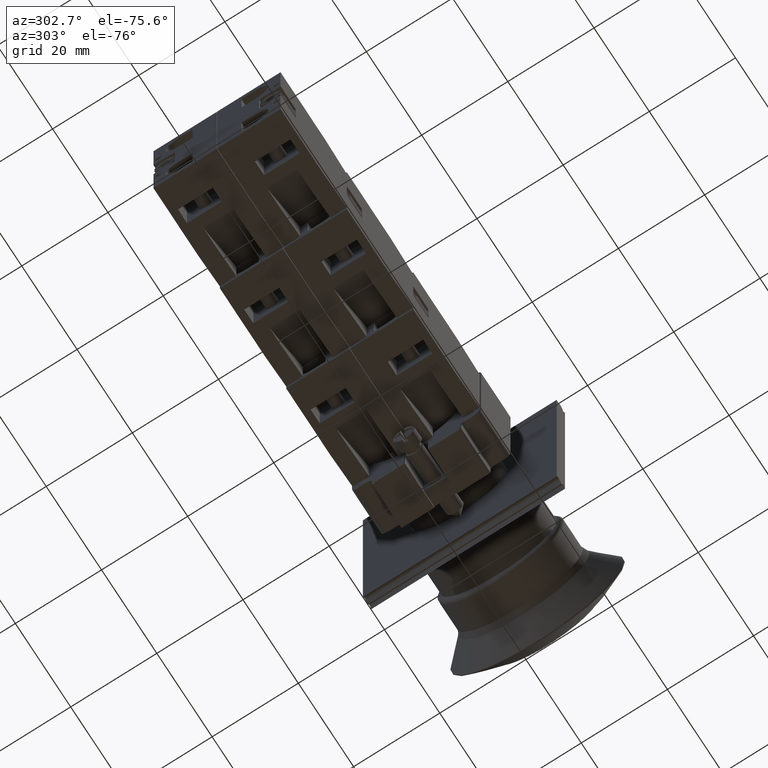
[diagram: clean part render]
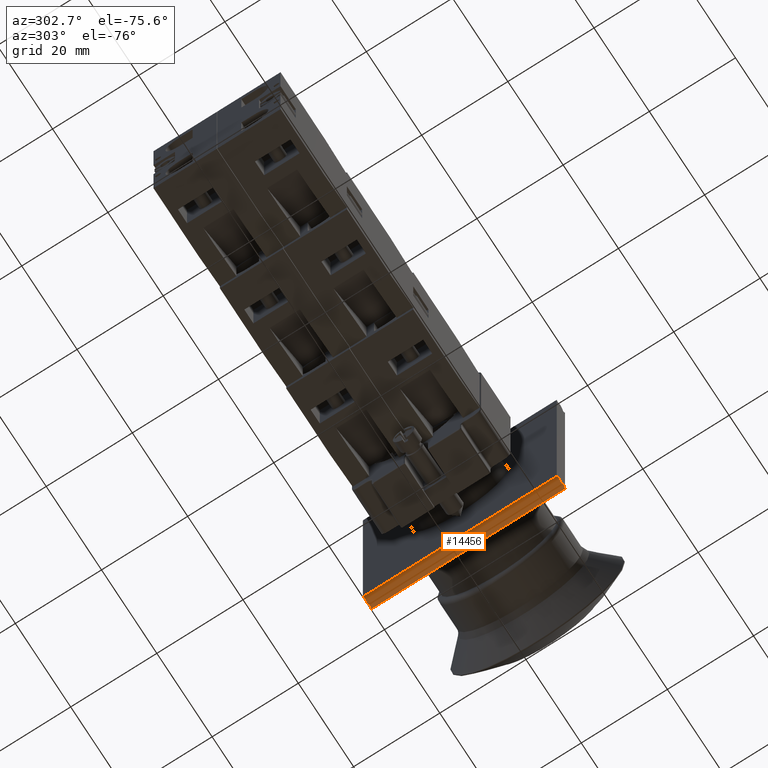
[diagram: same view with one face highlighted and labeled with its STEP entity id]
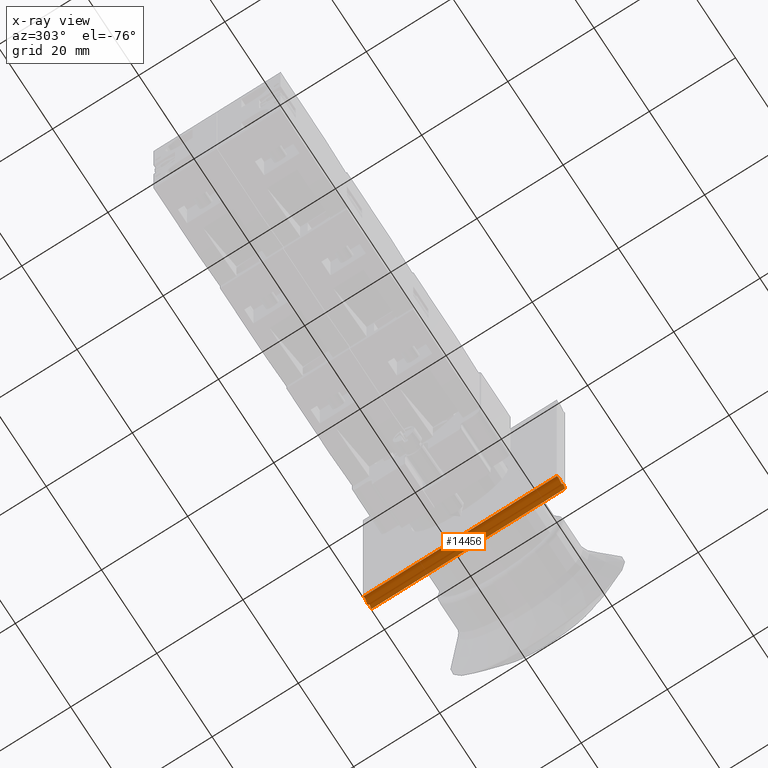
[diagram: x-ray of the same camera — body ghosted, the highlighted face saturated]
A machine part, auxiliary view. The second image highlights one B-rep face of the part: STEP entity #14456.
The next image is the same camera in x-ray: the body ghosted, the highlighted face saturated — about 0% of this face is hidden behind the body in this view.
In plain terms, the highlighted face is a freeform B-spline surface patch.
Its self-contained STEP definition (entity closure, byte-faithful):
#14387=CARTESIAN_POINT('',(-12.704183619849172,-62.725398273954283,45.0));
#14388=VERTEX_POINT('',#14387);
#14395=CARTESIAN_POINT('',(-12.704183619849172,-62.725398273954283,0.0));
#14396=VERTEX_POINT('',#14395);
#14397=CARTESIAN_POINT('',(-12.704183619849172,-62.725398273954283,0.0));
#14398=DIRECTION('',(0.0,0.0,1.0));
#14399=VECTOR('',#14398,45.0);
#14400=LINE('',#14397,#14399);
#14401=EDGE_CURVE('',#14396,#14388,#14400,.T.);
#14416=CARTESIAN_POINT('',(-15.704183619849182,-62.725398273954283,0.0));
#14417=CARTESIAN_POINT('',(-14.283734517597093,-58.710287807173117,0.0));
#14418=CARTESIAN_POINT('',(-13.047229203726467,-69.825373706267470,0.0));
#14419=CARTESIAN_POINT('',(-14.371498841514271,-57.028426828334801,0.0));
#14420=CARTESIAN_POINT('',(-12.704183619849177,-62.725398273954298,0.0));
#14421=CARTESIAN_POINT('',(-15.704183619849182,-62.725398273954283,45.0));
#14422=CARTESIAN_POINT('',(-14.283734517597093,-58.710287807173117,45.0));
#14423=CARTESIAN_POINT('',(-13.047229203726467,-69.825373706267470,45.0));
#14424=CARTESIAN_POINT('',(-14.371498841514271,-57.028426828334801,45.0));
#14425=CARTESIAN_POINT('',(-12.704183619849177,-62.725398273954298,45.0));
#14426=B_SPLINE_SURFACE_WITH_KNOTS('',4,1,((#14416,#14421),(#14417,#14422),(#14418,#14423),(#14419,#14424),(#14420,#14425)),.UNSPECIFIED.,.F.,.F.,.U.,(5,5),(2,2),(0.0,1.0),(0.0,4.500000000000000),.UNSPECIFIED.);
#14427=CARTESIAN_POINT('',(-15.704183619849179,-62.725398273954283,45.0));
#14428=VERTEX_POINT('',#14427);
#14429=CARTESIAN_POINT('',(-12.704183619849177,-62.725398273954298,45.0));
#14430=CARTESIAN_POINT('',(-14.371498841514271,-57.028426828334801,45.0));
#14431=CARTESIAN_POINT('',(-13.047229203726467,-69.825373706267470,45.0));
#14432=CARTESIAN_POINT('',(-14.283734517597093,-58.710287807173117,45.0));
#14433=CARTESIAN_POINT('',(-15.704183619849182,-62.725398273954283,45.0));
#14434=QUASI_UNIFORM_CURVE('',4,(#14429,#14430,#14431,#14432,#14433),.UNSPECIFIED.,.F.,.U.);
#14435=EDGE_CURVE('',#14388,#14428,#14434,.T.);
#14436=ORIENTED_EDGE('',*,*,#14435,.T.);
#14437=CARTESIAN_POINT('',(-15.704183619849179,-62.725398273954283,0.0));
#14438=VERTEX_POINT('',#14437);
#14439=CARTESIAN_POINT('',(-15.704183619849179,-62.725398273954283,0.0));
#14440=DIRECTION('',(0.0,0.0,1.0));
#14441=VECTOR('',#14440,45.0);
#14442=LINE('',#14439,#14441);
#14443=EDGE_CURVE('',#14438,#14428,#14442,.T.);
#14444=ORIENTED_EDGE('',*,*,#14443,.F.);
#14445=CARTESIAN_POINT('',(-15.704183619849182,-62.725398273954283,0.0));
#14446=CARTESIAN_POINT('',(-14.283734517597093,-58.710287807173117,0.0));
#14447=CARTESIAN_POINT('',(-13.047229203726467,-69.825373706267470,0.0));
#14448=CARTESIAN_POINT('',(-14.371498841514271,-57.028426828334801,0.0));
#14449=CARTESIAN_POINT('',(-12.704183619849177,-62.725398273954298,0.0));
#14450=QUASI_UNIFORM_CURVE('',4,(#14445,#14446,#14447,#14448,#14449),.UNSPECIFIED.,.F.,.U.);
#14451=EDGE_CURVE('',#14438,#14396,#14450,.T.);
#14452=ORIENTED_EDGE('',*,*,#14451,.T.);
#14453=ORIENTED_EDGE('',*,*,#14401,.T.);
#14454=EDGE_LOOP('',(#14436,#14444,#14452,#14453));
#14455=FACE_OUTER_BOUND('',#14454,.T.);
#14456=ADVANCED_FACE('',(#14455),#14426,.T.);